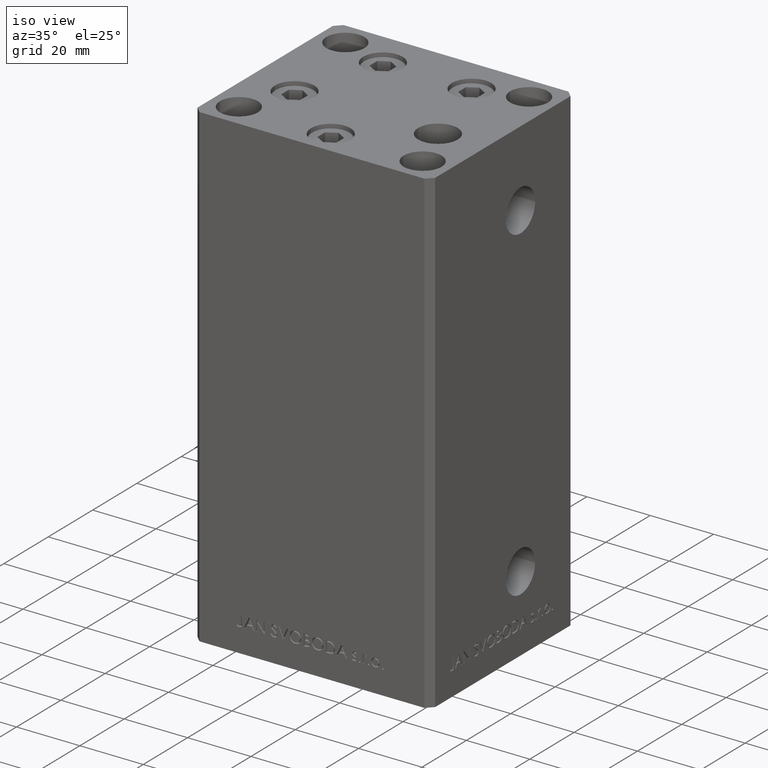
[diagram: clean part render]
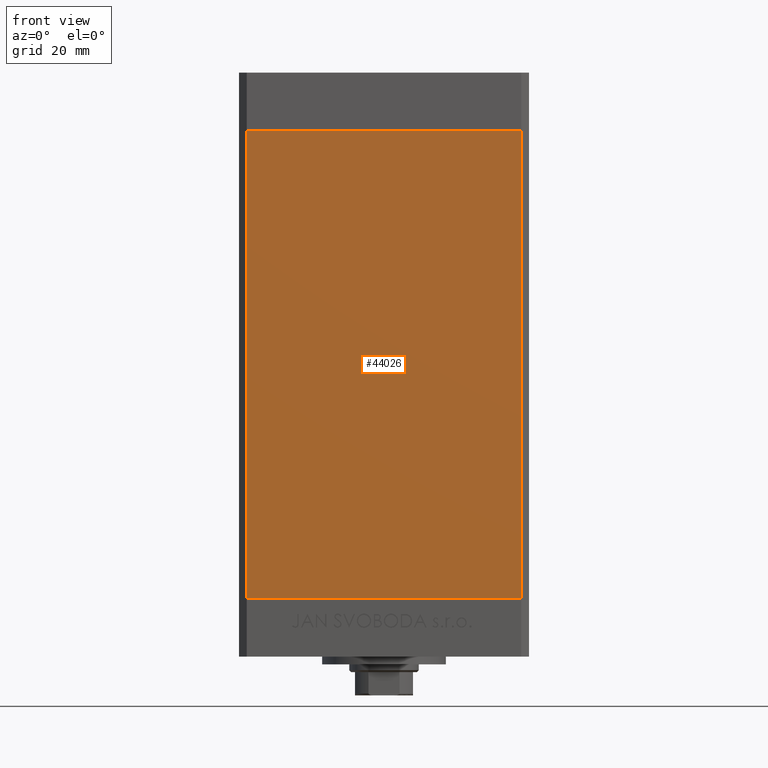
[diagram: tour spotlight — one face highlighted and labeled with its STEP entity id]
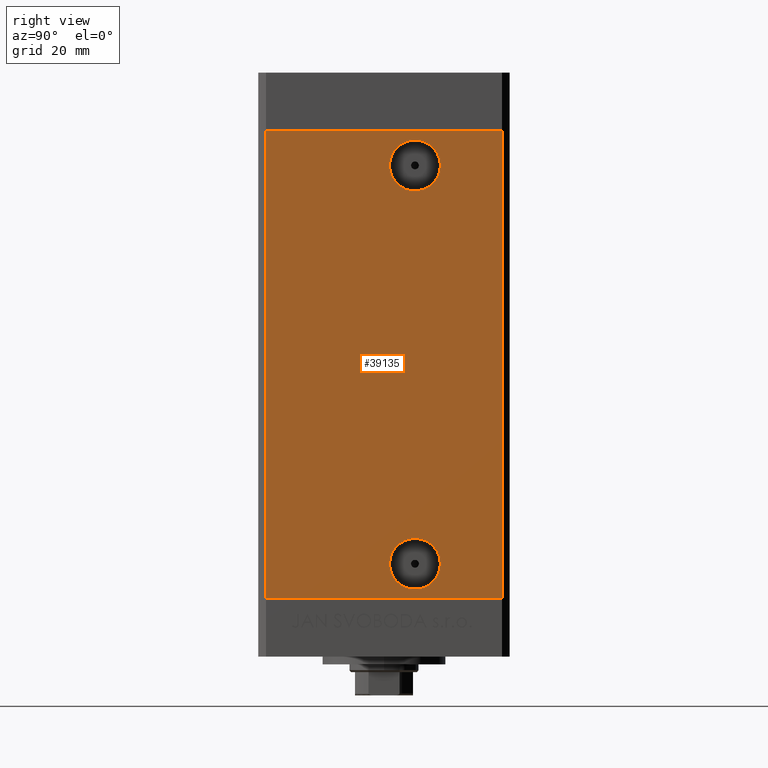
[diagram: tour spotlight — one face highlighted and labeled with its STEP entity id]
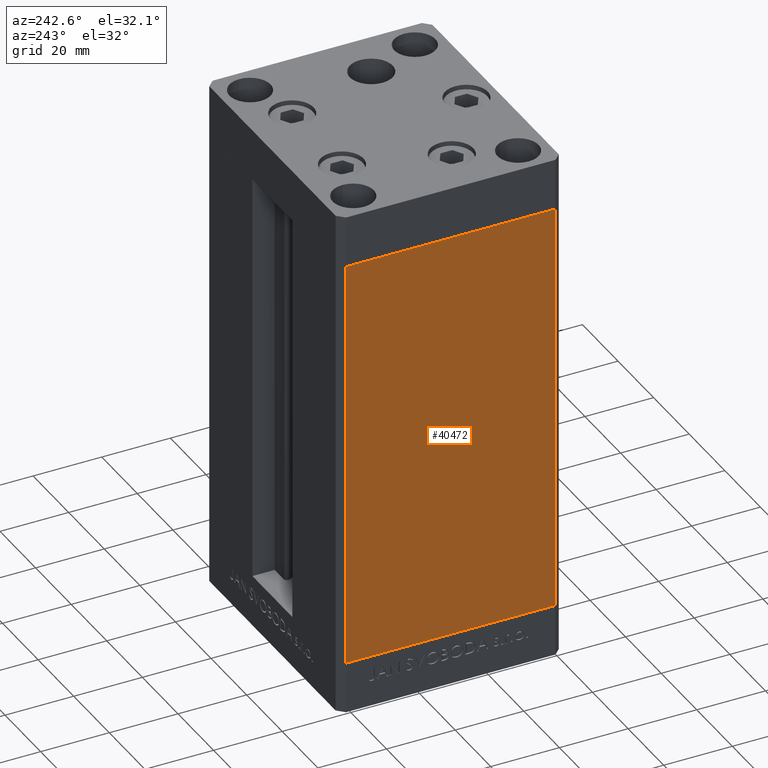
[diagram: tour spotlight — one face highlighted and labeled with its STEP entity id]
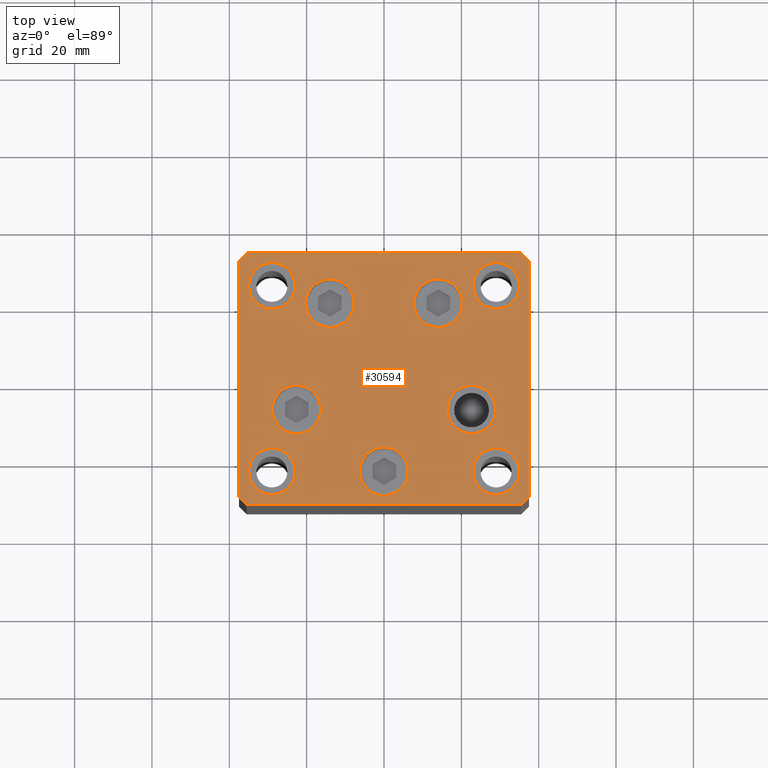
[diagram: tour spotlight — one face highlighted and labeled with its STEP entity id]
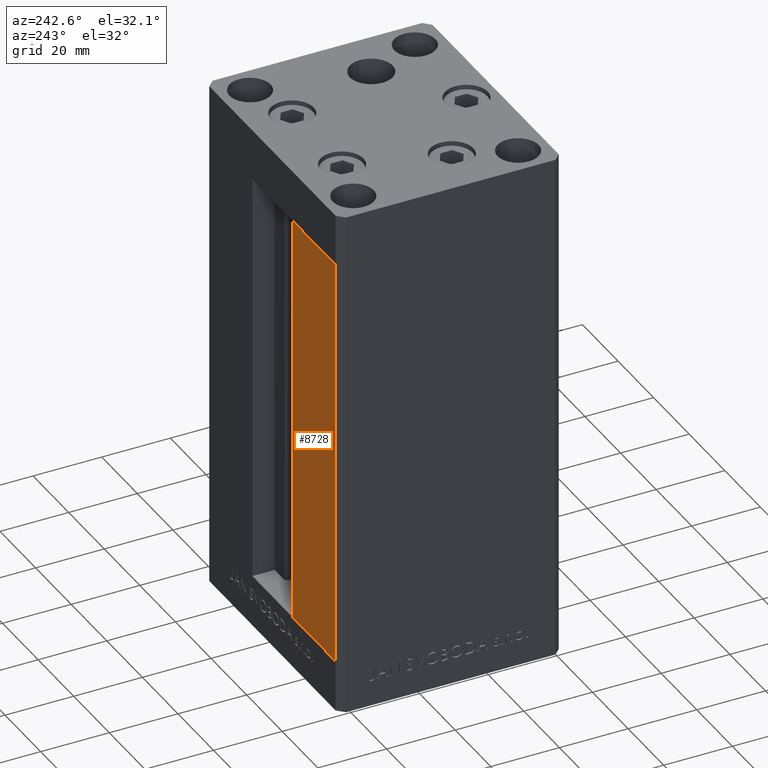
[diagram: tour spotlight — one face highlighted and labeled with its STEP entity id]
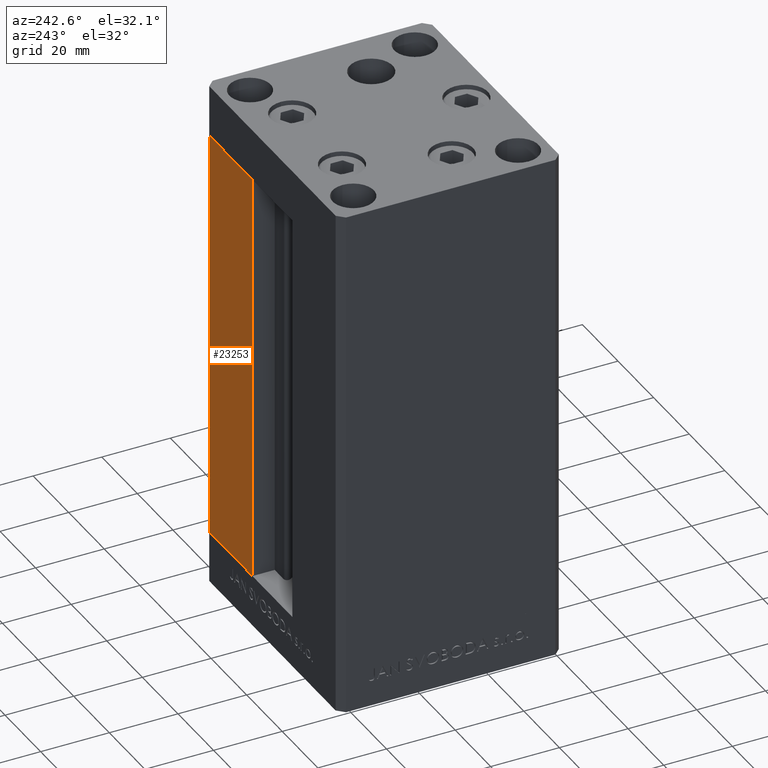
[diagram: tour spotlight — one face highlighted and labeled with its STEP entity id]
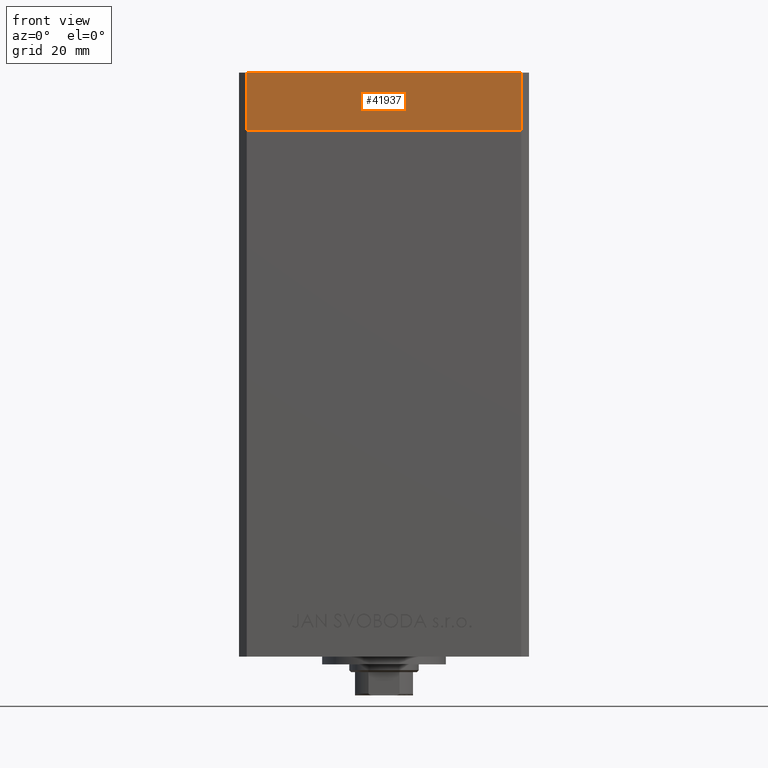
[diagram: tour spotlight — one face highlighted and labeled with its STEP entity id]
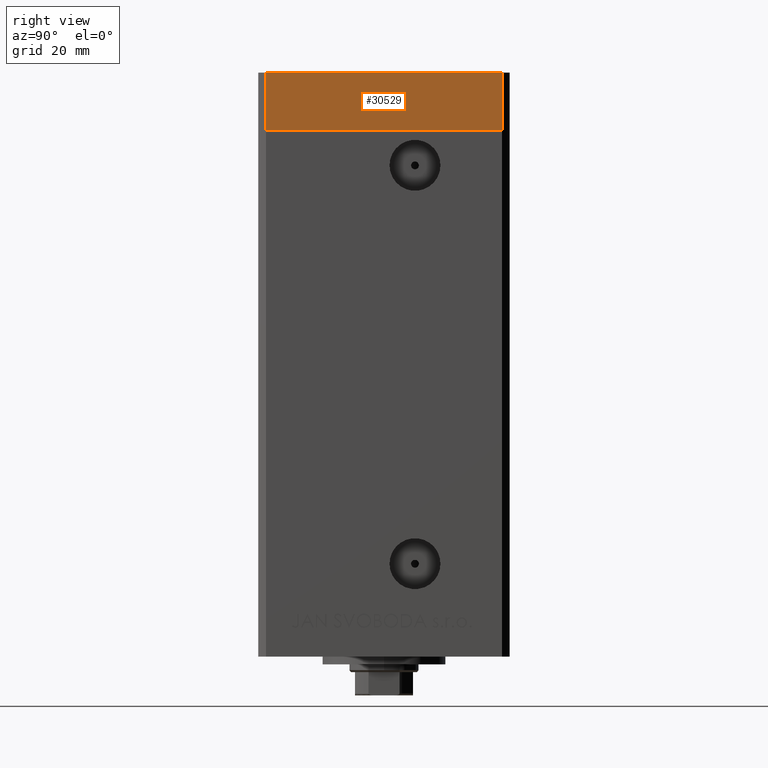
[diagram: tour spotlight — one face highlighted and labeled with its STEP entity id]
A machine part: a face-by-face anatomy tour. The part has 1169 B-rep faces; the first image is the clean iso view, then the 8 largest visible faces are spotlighted one at a time (largest first), each with its STEP entity span.

Face 1 — front view, entity #44026. In plain terms, the highlighted planar face has unit normal (0, 1, 0).
Definition (entity closure, byte-faithful):
#1613 = CARTESIAN_POINT ( 'NONE',  ( 35.49999999999999289, -32.50000000000000000, 121.0000000000000000 ) ) ;
#3318 = VECTOR ( 'NONE', #39410, 1000.000000000000000 ) ;
#5773 = LINE ( 'NONE', #39171, #3318 ) ;
#6945 = ORIENTED_EDGE ( 'NONE', *, *, #45944, .T. ) ;
#7043 = CARTESIAN_POINT ( 'NONE',  ( -35.49999999999999289, -32.50000000000000000, 121.0000000000000000 ) ) ;
#8787 = EDGE_LOOP ( 'NONE', ( #17415, #12719, #27974, #6945 ) ) ;
#10812 = VECTOR ( 'NONE', #47216, 1000.000000000000000 ) ;
#12642 = EDGE_CURVE ( 'NONE', #33855, #28897, #49188, .T. ) ;
#12719 = ORIENTED_EDGE ( 'NONE', *, *, #31544, .F. ) ;
#12919 = LINE ( 'NONE', #39557, #45379 ) ;
#15297 = CARTESIAN_POINT ( 'NONE',  ( -35.49999999999999289, -32.50000000000000000, 0.000000000000000000 ) ) ;
#16718 = DIRECTION ( 'NONE',  ( 0.000000000000000000, 1.000000000000000000, 0.000000000000000000 ) ) ;
#17415 = ORIENTED_EDGE ( 'NONE', *, *, #12642, .T. ) ;
#19011 = VECTOR ( 'NONE', #26747, 1000.000000000000000 ) ;
#19108 = EDGE_CURVE ( 'NONE', #40384, #43232, #5773, .T. ) ;
#24021 = CARTESIAN_POINT ( 'NONE',  ( 35.49999999999999289, -32.50000000000000000, 121.0000000000000000 ) ) ;
#25418 = DIRECTION ( 'NONE',  ( 0.000000000000000000, -0.000000000000000000, 1.000000000000000000 ) ) ;
#26747 = DIRECTION ( 'NONE',  ( 1.000000000000000000, 0.000000000000000000, 0.000000000000000000 ) ) ;
#27974 = ORIENTED_EDGE ( 'NONE', *, *, #19108, .F. ) ;
#28668 = CARTESIAN_POINT ( 'NONE',  ( -35.49999999999999289, -32.50000000000000000, 121.0000000000000000 ) ) ;
#28854 = CARTESIAN_POINT ( 'NONE',  ( -35.49999999999999289, -32.50000000000000000, 0.000000000000000000 ) ) ;
#28897 = VERTEX_POINT ( 'NONE', #46145 ) ;
#31544 = EDGE_CURVE ( 'NONE', #43232, #28897, #35749, .T. ) ;
#33855 = VERTEX_POINT ( 'NONE', #28854 ) ;
#35749 = LINE ( 'NONE', #1613, #10812 ) ;
#35829 = DIRECTION ( 'NONE',  ( -0.000000000000000000, -0.000000000000000000, -1.000000000000000000 ) ) ;
#36632 = PLANE ( 'NONE',  #47693 ) ;
#39171 = CARTESIAN_POINT ( 'NONE',  ( -35.49999999999999289, -32.50000000000000000, 121.0000000000000000 ) ) ;
#39410 = DIRECTION ( 'NONE',  ( 1.000000000000000000, 0.000000000000000000, 0.000000000000000000 ) ) ;
#39557 = CARTESIAN_POINT ( 'NONE',  ( -35.49999999999999289, -32.50000000000000000, 121.0000000000000000 ) ) ;
#40116 = FACE_OUTER_BOUND ( 'NONE', #8787, .T. ) ;
#40384 = VERTEX_POINT ( 'NONE', #7043 ) ;
#43232 = VERTEX_POINT ( 'NONE', #24021 ) ;
#44026 = ADVANCED_FACE ( 'NONE', ( #40116 ), #36632, .F. ) ;
#45379 = VECTOR ( 'NONE', #35829, 1000.000000000000000 ) ;
#45944 = EDGE_CURVE ( 'NONE', #40384, #33855, #12919, .T. ) ;
#46145 = CARTESIAN_POINT ( 'NONE',  ( 35.49999999999999289, -32.50000000000000000, 0.000000000000000000 ) ) ;
#47216 = DIRECTION ( 'NONE',  ( -0.000000000000000000, -0.000000000000000000, -1.000000000000000000 ) ) ;
#47693 = AXIS2_PLACEMENT_3D ( 'NONE', #28668, #16718, #25418 ) ;
#49188 = LINE ( 'NONE', #15297, #19011 ) ;

Face 2 — right view, entity #39135. In plain terms, the highlighted planar face has unit normal (1, -0, 0).
Definition (entity closure, byte-faithful):
#44 = FACE_OUTER_BOUND ( 'NONE', #3444, .T. ) ;
#312 = CIRCLE ( 'NONE', #32929, 6.580000000000006288 ) ;
#1404 = VECTOR ( 'NONE', #17225, 1000.000000000000000 ) ;
#1661 = CARTESIAN_POINT ( 'NONE',  ( 37.50000000000000000, 7.999999999999991118, 8.999999999999994671 ) ) ;
#1679 = ORIENTED_EDGE ( 'NONE', *, *, #9567, .F. ) ;
#2191 = AXIS2_PLACEMENT_3D ( 'NONE', #23453, #30202, #15488 ) ;
#2241 = EDGE_CURVE ( 'NONE', #33177, #34688, #48256, .T. ) ;
#2506 = CARTESIAN_POINT ( 'NONE',  ( 37.50000000000000000, 7.999999999999991118, 111.9999999999999858 ) ) ;
#3109 = VECTOR ( 'NONE', #6335, 1000.000000000000000 ) ;
#3163 = EDGE_LOOP ( 'NONE', ( #25339, #35621 ) ) ;
#3444 = EDGE_LOOP ( 'NONE', ( #28221, #20980, #26008, #15159 ) ) ;
#3562 = DIRECTION ( 'NONE',  ( 0.000000000000000000, 1.000000000000000000, 0.000000000000000000 ) ) ;
#3742 = CARTESIAN_POINT ( 'NONE',  ( 37.50000000000000711, 30.50000000000000000, 0.000000000000000000 ) ) ;
#3853 = CARTESIAN_POINT ( 'NONE',  ( 37.49999999999999289, -30.50000000000000000, 121.0000000000000000 ) ) ;
#4261 = ORIENTED_EDGE ( 'NONE', *, *, #2241, .F. ) ;
#5280 = CARTESIAN_POINT ( 'NONE',  ( 37.50000000000000711, 30.50000000000000000, 121.0000000000000000 ) ) ;
#5850 = CARTESIAN_POINT ( 'NONE',  ( 37.50000000000000711, 30.50000000000000000, 121.0000000000000000 ) ) ;
#6130 = DIRECTION ( 'NONE',  ( 1.000000000000000000, -2.275047181608927644E-16, 0.000000000000000000 ) ) ;
#6335 = DIRECTION ( 'NONE',  ( -2.275047181608927644E-16, -1.000000000000000000, 0.000000000000000000 ) ) ;
#6911 = CARTESIAN_POINT ( 'NONE',  ( 37.50000000000000000, 1.419999999999989049, 111.9999999999999858 ) ) ;
#7767 = FACE_BOUND ( 'NONE', #3163, .T. ) ;
#8412 = VERTEX_POINT ( 'NONE', #13799 ) ;
#8815 = EDGE_CURVE ( 'NONE', #24470, #19255, #9761, .T. ) ;
#9567 = EDGE_CURVE ( 'NONE', #34688, #33177, #31631, .T. ) ;
#9761 = LINE ( 'NONE', #5280, #1404 ) ;
#9838 = LINE ( 'NONE', #5850, #3109 ) ;
#11697 = CARTESIAN_POINT ( 'NONE',  ( 37.49999999999999289, -30.50000000000000000, 121.0000000000000000 ) ) ;
#13530 = EDGE_CURVE ( 'NONE', #24470, #29631, #9838, .T. ) ;
#13799 = CARTESIAN_POINT ( 'NONE',  ( 37.50000000000000000, 1.419999999999985496, 8.999999999999994671 ) ) ;
#14306 = EDGE_CURVE ( 'NONE', #19255, #45272, #23807, .T. ) ;
#15159 = ORIENTED_EDGE ( 'NONE', *, *, #27836, .T. ) ;
#15488 = DIRECTION ( 'NONE',  ( 2.275047181608927151E-16, 1.000000000000000000, 0.000000000000000000 ) ) ;
#16089 = DIRECTION ( 'NONE',  ( -2.275047181608927644E-16, -1.000000000000000000, 0.000000000000000000 ) ) ;
#17175 = VERTEX_POINT ( 'NONE', #27449 ) ;
#17225 = DIRECTION ( 'NONE',  ( -0.000000000000000000, -0.000000000000000000, -1.000000000000000000 ) ) ;
#17709 = DIRECTION ( 'NONE',  ( 0.000000000000000000, 1.000000000000000000, 0.000000000000000000 ) ) ;
#18627 = CARTESIAN_POINT ( 'NONE',  ( 37.49999999999999289, -30.50000000000000000, 0.000000000000000000 ) ) ;
#19236 = PLANE ( 'NONE',  #2191 ) ;
#19249 = CIRCLE ( 'NONE', #45513, 6.580000000000006288 ) ;
#19255 = VERTEX_POINT ( 'NONE', #3742 ) ;
#20844 = DIRECTION ( 'NONE',  ( 0.000000000000000000, 1.000000000000000000, 0.000000000000000000 ) ) ;
#20980 = ORIENTED_EDGE ( 'NONE', *, *, #8815, .F. ) ;
#20997 = EDGE_LOOP ( 'NONE', ( #4261, #1679 ) ) ;
#23453 = CARTESIAN_POINT ( 'NONE',  ( 37.50000000000000711, 30.50000000000000000, 121.0000000000000000 ) ) ;
#23586 = EDGE_CURVE ( 'NONE', #17175, #8412, #19249, .T. ) ;
#23807 = LINE ( 'NONE', #42994, #30179 ) ;
#24470 = VERTEX_POINT ( 'NONE', #36767 ) ;
#25032 = VECTOR ( 'NONE', #27135, 1000.000000000000000 ) ;
#25164 = AXIS2_PLACEMENT_3D ( 'NONE', #2506, #39640, #17709 ) ;
#25339 = ORIENTED_EDGE ( 'NONE', *, *, #23586, .F. ) ;
#25602 = DIRECTION ( 'NONE',  ( 1.000000000000000000, -2.275047181608927644E-16, 0.000000000000000000 ) ) ;
#26008 = ORIENTED_EDGE ( 'NONE', *, *, #13530, .T. ) ;
#27135 = DIRECTION ( 'NONE',  ( -0.000000000000000000, -0.000000000000000000, -1.000000000000000000 ) ) ;
#27256 = EDGE_CURVE ( 'NONE', #8412, #17175, #312, .T. ) ;
#27449 = CARTESIAN_POINT ( 'NONE',  ( 37.50000000000000000, 14.57999999999999829, 8.999999999999994671 ) ) ;
#27836 = EDGE_CURVE ( 'NONE', #29631, #45272, #42086, .T. ) ;
#28221 = ORIENTED_EDGE ( 'NONE', *, *, #14306, .F. ) ;
#29631 = VERTEX_POINT ( 'NONE', #3853 ) ;
#30179 = VECTOR ( 'NONE', #16089, 1000.000000000000000 ) ;
#30202 = DIRECTION ( 'NONE',  ( 1.000000000000000000, -2.275047181608927151E-16, 0.000000000000000000 ) ) ;
#30936 = FACE_BOUND ( 'NONE', #20997, .T. ) ;
#31631 = CIRCLE ( 'NONE', #45146, 6.580000000000002736 ) ;
#32823 = DIRECTION ( 'NONE',  ( 0.000000000000000000, 1.000000000000000000, 0.000000000000000000 ) ) ;
#32929 = AXIS2_PLACEMENT_3D ( 'NONE', #47535, #25602, #32823 ) ;
#33177 = VERTEX_POINT ( 'NONE', #40166 ) ;
#34688 = VERTEX_POINT ( 'NONE', #6911 ) ;
#35621 = ORIENTED_EDGE ( 'NONE', *, *, #27256, .F. ) ;
#36767 = CARTESIAN_POINT ( 'NONE',  ( 37.50000000000000711, 30.50000000000000000, 121.0000000000000000 ) ) ;
#37937 = DIRECTION ( 'NONE',  ( 1.000000000000000000, -2.275047181608927644E-16, 0.000000000000000000 ) ) ;
#39135 = ADVANCED_FACE ( 'NONE', ( #7767, #30936, #44 ), #19236, .T. ) ;
#39640 = DIRECTION ( 'NONE',  ( 1.000000000000000000, -2.275047181608927644E-16, 0.000000000000000000 ) ) ;
#40166 = CARTESIAN_POINT ( 'NONE',  ( 37.50000000000000000, 14.57999999999999474, 111.9999999999999858 ) ) ;
#41186 = CARTESIAN_POINT ( 'NONE',  ( 37.50000000000000000, 7.999999999999991118, 111.9999999999999858 ) ) ;
#42086 = LINE ( 'NONE', #11697, #25032 ) ;
#42994 = CARTESIAN_POINT ( 'NONE',  ( 37.50000000000000711, 30.50000000000000000, 0.000000000000000000 ) ) ;
#45146 = AXIS2_PLACEMENT_3D ( 'NONE', #41186, #37937, #3562 ) ;
#45272 = VERTEX_POINT ( 'NONE', #18627 ) ;
#45513 = AXIS2_PLACEMENT_3D ( 'NONE', #1661, #6130, #20844 ) ;
#47535 = CARTESIAN_POINT ( 'NONE',  ( 37.50000000000000000, 7.999999999999991118, 8.999999999999994671 ) ) ;
#48256 = CIRCLE ( 'NONE', #25164, 6.580000000000002736 ) ;

Face 3 — auxiliary view, entity #40472. In plain terms, the highlighted planar face has unit normal (1, 0, 0).
Definition (entity closure, byte-faithful):
#1450 = AXIS2_PLACEMENT_3D ( 'NONE', #46334, #8455, #23647 ) ;
#2058 = VECTOR ( 'NONE', #30958, 1000.000000000000000 ) ;
#5060 = EDGE_LOOP ( 'NONE', ( #43598, #26855, #34605, #28074 ) ) ;
#7545 = VERTEX_POINT ( 'NONE', #19538 ) ;
#8073 = DIRECTION ( 'NONE',  ( 2.275047181608927644E-16, -1.000000000000000000, 0.000000000000000000 ) ) ;
#8455 = DIRECTION ( 'NONE',  ( 1.000000000000000000, 2.275047181608927151E-16, -0.000000000000000000 ) ) ;
#9109 = VECTOR ( 'NONE', #8073, 1000.000000000000000 ) ;
#11817 = LINE ( 'NONE', #13473, #9109 ) ;
#13473 = CARTESIAN_POINT ( 'NONE',  ( -37.50000000000000711, 30.50000000000000000, 0.000000000000000000 ) ) ;
#15931 = FACE_OUTER_BOUND ( 'NONE', #5060, .T. ) ;
#16330 = CARTESIAN_POINT ( 'NONE',  ( -37.50000000000000711, 30.50000000000000000, 121.0000000000000000 ) ) ;
#16776 = VECTOR ( 'NONE', #21443, 1000.000000000000000 ) ;
#18687 = CARTESIAN_POINT ( 'NONE',  ( -37.50000000000000711, 30.50000000000000000, 121.0000000000000000 ) ) ;
#18764 = VERTEX_POINT ( 'NONE', #43457 ) ;
#19538 = CARTESIAN_POINT ( 'NONE',  ( -37.50000000000000711, 30.50000000000000000, 0.000000000000000000 ) ) ;
#20669 = VERTEX_POINT ( 'NONE', #16330 ) ;
#21443 = DIRECTION ( 'NONE',  ( 2.275047181608927644E-16, -1.000000000000000000, 0.000000000000000000 ) ) ;
#22994 = CARTESIAN_POINT ( 'NONE',  ( -37.49999999999999289, -30.50000000000000000, 121.0000000000000000 ) ) ;
#23647 = DIRECTION ( 'NONE',  ( -2.275047181608927151E-16, 1.000000000000000000, 0.000000000000000000 ) ) ;
#25677 = CARTESIAN_POINT ( 'NONE',  ( -37.50000000000000711, 30.50000000000000000, 121.0000000000000000 ) ) ;
#25679 = LINE ( 'NONE', #18687, #26985 ) ;
#26855 = ORIENTED_EDGE ( 'NONE', *, *, #31731, .F. ) ;
#26985 = VECTOR ( 'NONE', #40864, 1000.000000000000000 ) ;
#27670 = EDGE_CURVE ( 'NONE', #7545, #31989, #11817, .T. ) ;
#28074 = ORIENTED_EDGE ( 'NONE', *, *, #42992, .T. ) ;
#30958 = DIRECTION ( 'NONE',  ( -0.000000000000000000, -0.000000000000000000, -1.000000000000000000 ) ) ;
#31124 = PLANE ( 'NONE',  #1450 ) ;
#31731 = EDGE_CURVE ( 'NONE', #18764, #31989, #42177, .T. ) ;
#31989 = VERTEX_POINT ( 'NONE', #46354 ) ;
#34605 = ORIENTED_EDGE ( 'NONE', *, *, #47810, .F. ) ;
#40472 = ADVANCED_FACE ( 'NONE', ( #15931 ), #31124, .F. ) ;
#40864 = DIRECTION ( 'NONE',  ( -0.000000000000000000, -0.000000000000000000, -1.000000000000000000 ) ) ;
#42177 = LINE ( 'NONE', #22994, #2058 ) ;
#42992 = EDGE_CURVE ( 'NONE', #20669, #7545, #25679, .T. ) ;
#43457 = CARTESIAN_POINT ( 'NONE',  ( -37.49999999999999289, -30.50000000000000000, 121.0000000000000000 ) ) ;
#43598 = ORIENTED_EDGE ( 'NONE', *, *, #27670, .T. ) ;
#44610 = LINE ( 'NONE', #25677, #16776 ) ;
#46334 = CARTESIAN_POINT ( 'NONE',  ( -37.50000000000000711, 30.50000000000000000, 121.0000000000000000 ) ) ;
#46354 = CARTESIAN_POINT ( 'NONE',  ( -37.49999999999999289, -30.50000000000000000, 0.000000000000000000 ) ) ;
#47810 = EDGE_CURVE ( 'NONE', #20669, #18764, #44610, .T. ) ;

Face 4 — top view, entity #30594. In plain terms, the highlighted planar face has unit normal (0, 0, 1).
Definition (entity closure, byte-faithful):
#65 = FACE_BOUND ( 'NONE', #6800, .T. ) ;
#157 = EDGE_CURVE ( 'NONE', #46944, #45923, #15582, .T. ) ;
#922 = ORIENTED_EDGE ( 'NONE', *, *, #5379, .T. ) ;
#1235 = CARTESIAN_POINT ( 'NONE',  ( 16.37741699796951877, -8.000000000000000000, 0.000000000000000000 ) ) ;
#1424 = ORIENTED_EDGE ( 'NONE', *, *, #46338, .F. ) ;
#1463 = CARTESIAN_POINT ( 'NONE',  ( 35.50000000000000711, -32.50000000000000711, 0.000000000000000000 ) ) ;
#1629 = EDGE_CURVE ( 'NONE', #18355, #46944, #23434, .T. ) ;
#1674 = EDGE_CURVE ( 'NONE', #10011, #41862, #15560, .T. ) ;
#1989 = AXIS2_PLACEMENT_3D ( 'NONE', #44231, #3125, #10109 ) ;
#2024 = CIRCLE ( 'NONE', #4399, 6.250000000000000000 ) ;
#2340 = VERTEX_POINT ( 'NONE', #6494 ) ;
#2531 = DIRECTION ( 'NONE',  ( 0.000000000000000000, 0.000000000000000000, 1.000000000000000000 ) ) ;
#3125 = DIRECTION ( 'NONE',  ( 0.000000000000000000, -0.000000000000000000, -1.000000000000000000 ) ) ;
#3468 = VERTEX_POINT ( 'NONE', #11226 ) ;
#3556 = CARTESIAN_POINT ( 'NONE',  ( 0.000000000000000000, 0.000000000000000000, 0.000000000000000000 ) ) ;
#3767 = DIRECTION ( 'NONE',  ( 1.000000000000000000, 0.000000000000000000, 0.000000000000000000 ) ) ;
#3803 = EDGE_LOOP ( 'NONE', ( #47754, #1424 ) ) ;
#4149 = CARTESIAN_POINT ( 'NONE',  ( 28.87741699796952233, -8.000000000000000000, 0.000000000000000000 ) ) ;
#4399 = AXIS2_PLACEMENT_3D ( 'NONE', #24456, #35182, #42651 ) ;
#4784 = CARTESIAN_POINT ( 'NONE',  ( -35.50000000000002842, 32.49999999999999289, 0.000000000000000000 ) ) ;
#4790 = EDGE_LOOP ( 'NONE', ( #15541, #32063, #15561, #35756, #922, #48387, #9284, #10249 ) ) ;
#4960 = LINE ( 'NONE', #1463, #42747 ) ;
#4985 = DIRECTION ( 'NONE',  ( -0.7071067811865482389, 0.7071067811865469066, 0.000000000000000000 ) ) ;
#5379 = EDGE_CURVE ( 'NONE', #20539, #41915, #47570, .T. ) ;
#5779 = DIRECTION ( 'NONE',  ( 1.000000000000000000, 0.000000000000000000, 0.000000000000000000 ) ) ;
#5941 = AXIS2_PLACEMENT_3D ( 'NONE', #27567, #9368, #34787 ) ;
#6387 = EDGE_LOOP ( 'NONE', ( #12537, #42455 ) ) ;
#6494 = CARTESIAN_POINT ( 'NONE',  ( -23.00000000000001421, -23.99999999999999289, 0.000000000000000000 ) ) ;
#6624 = DIRECTION ( 'NONE',  ( 1.000000000000000000, 0.000000000000000000, 0.000000000000000000 ) ) ;
#6752 = CIRCLE ( 'NONE', #18710, 6.250000000000001776 ) ;
#6800 = EDGE_LOOP ( 'NONE', ( #42998, #22218 ) ) ;
#6968 = DIRECTION ( 'NONE',  ( 0.7071067811865474617, -0.7071067811865474617, 0.000000000000000000 ) ) ;
#7667 = CIRCLE ( 'NONE', #47477, 6.000000000000005329 ) ;
#7814 = DIRECTION ( 'NONE',  ( 1.000000000000000000, 9.773090005503140331E-17, 0.000000000000000000 ) ) ;
#8003 = CARTESIAN_POINT ( 'NONE',  ( -22.62741699796951877, -8.000000000000005329, 0.000000000000000000 ) ) ;
#8015 = DIRECTION ( 'NONE',  ( 1.000000000000000000, 0.000000000000000000, 0.000000000000000000 ) ) ;
#8139 = LINE ( 'NONE', #30564, #37768 ) ;
#8415 = AXIS2_PLACEMENT_3D ( 'NONE', #36866, #40601, #32629 ) ;
#8669 = CIRCLE ( 'NONE', #34911, 5.999999999999998224 ) ;
#8945 = DIRECTION ( 'NONE',  ( 0.7071067811865487940, 0.7071067811865463515, 0.000000000000000000 ) ) ;
#9025 = ORIENTED_EDGE ( 'NONE', *, *, #1674, .F. ) ;
#9165 = VECTOR ( 'NONE', #46234, 1000.000000000000000 ) ;
#9174 = CARTESIAN_POINT ( 'NONE',  ( -37.50000000000001421, 30.49999999999998579, 0.000000000000000000 ) ) ;
#9283 = CIRCLE ( 'NONE', #24394, 6.000000000000005329 ) ;
#9284 = ORIENTED_EDGE ( 'NONE', *, *, #1629, .T. ) ;
#9368 = DIRECTION ( 'NONE',  ( 0.000000000000000000, -0.000000000000000000, -1.000000000000000000 ) ) ;
#9726 = EDGE_CURVE ( 'NONE', #31887, #2340, #8669, .T. ) ;
#9976 = DIRECTION ( 'NONE',  ( 0.000000000000000000, 0.000000000000000000, 1.000000000000000000 ) ) ;
#10011 = VERTEX_POINT ( 'NONE', #46352 ) ;
#10109 = DIRECTION ( 'NONE',  ( 1.000000000000000000, 0.000000000000000000, 0.000000000000000000 ) ) ;
#10135 = DIRECTION ( 'NONE',  ( 0.000000000000000000, -0.000000000000000000, -1.000000000000000000 ) ) ;
#10193 = VERTEX_POINT ( 'NONE', #33359 ) ;
#10249 = ORIENTED_EDGE ( 'NONE', *, *, #157, .T. ) ;
#10433 = CARTESIAN_POINT ( 'NONE',  ( -29.00000000000001066, -23.99999999999999289, 0.000000000000000000 ) ) ;
#10664 = CARTESIAN_POINT ( 'NONE',  ( 6.250000000000002665, -24.00000000000000000, 0.000000000000000000 ) ) ;
#10916 = DIRECTION ( 'NONE',  ( 0.000000000000000000, 0.000000000000000000, 1.000000000000000000 ) ) ;
#11226 = CARTESIAN_POINT ( 'NONE',  ( 23.00000000000001066, -23.99999999999999289, 0.000000000000000000 ) ) ;
#11492 = EDGE_LOOP ( 'NONE', ( #44763, #45987 ) ) ;
#11554 = CARTESIAN_POINT ( 'NONE',  ( -35.49999999999998579, -32.50000000000001421, 0.000000000000000000 ) ) ;
#11614 = CARTESIAN_POINT ( 'NONE',  ( 37.49999999999992184, 30.50000000000001066, 0.000000000000000000 ) ) ;
#11759 = CARTESIAN_POINT ( 'NONE',  ( 2.939152317953647500E-15, -24.00000000000000000, 0.000000000000000000 ) ) ;
#12088 = VERTEX_POINT ( 'NONE', #24358 ) ;
#12537 = ORIENTED_EDGE ( 'NONE', *, *, #48989, .T. ) ;
#13441 = CARTESIAN_POINT ( 'NONE',  ( 37.49999999999992184, 30.50000000000001066, 0.000000000000000000 ) ) ;
#13571 = VERTEX_POINT ( 'NONE', #17304 ) ;
#13979 = AXIS2_PLACEMENT_3D ( 'NONE', #10433, #10916, #18635 ) ;
#14121 = AXIS2_PLACEMENT_3D ( 'NONE', #21622, #33806, #45762 ) ;
#14505 = EDGE_CURVE ( 'NONE', #44211, #21849, #45928, .T. ) ;
#14548 = VERTEX_POINT ( 'NONE', #42193 ) ;
#14768 = EDGE_CURVE ( 'NONE', #34969, #19191, #16703, .T. ) ;
#14784 = VECTOR ( 'NONE', #34899, 1000.000000000000000 ) ;
#15025 = DIRECTION ( 'NONE',  ( 1.000000000000000000, 0.000000000000000000, 0.000000000000000000 ) ) ;
#15541 = ORIENTED_EDGE ( 'NONE', *, *, #38228, .T. ) ;
#15560 = CIRCLE ( 'NONE', #8415, 6.000000000000005329 ) ;
#15561 = ORIENTED_EDGE ( 'NONE', *, *, #34624, .T. ) ;
#15582 = LINE ( 'NONE', #19569, #9165 ) ;
#15584 = VERTEX_POINT ( 'NONE', #46677 ) ;
#15750 = FACE_BOUND ( 'NONE', #6387, .T. ) ;
#15930 = DIRECTION ( 'NONE',  ( 1.000000000000000000, 0.000000000000000000, 0.000000000000000000 ) ) ;
#16428 = DIRECTION ( 'NONE',  ( 1.000000000000000000, 0.000000000000000000, 0.000000000000000000 ) ) ;
#16677 = DIRECTION ( 'NONE',  ( 0.000000000000000000, -0.000000000000000000, -1.000000000000000000 ) ) ;
#16703 = CIRCLE ( 'NONE', #46933, 6.250000000000001776 ) ;
#17304 = CARTESIAN_POINT ( 'NONE',  ( -6.249999999999997335, -24.00000000000000000, 0.000000000000000000 ) ) ;
#17607 = VERTEX_POINT ( 'NONE', #24386 ) ;
#17968 = VERTEX_POINT ( 'NONE', #36778 ) ;
#18245 = CARTESIAN_POINT ( 'NONE',  ( 35.00000000000001421, 24.00000000000000711, 0.000000000000000000 ) ) ;
#18303 = CIRCLE ( 'NONE', #27883, 6.000000000000005329 ) ;
#18355 = VERTEX_POINT ( 'NONE', #4784 ) ;
#18542 = AXIS2_PLACEMENT_3D ( 'NONE', #34865, #16677, #15930 ) ;
#18552 = ORIENTED_EDGE ( 'NONE', *, *, #44129, .F. ) ;
#18635 = DIRECTION ( 'NONE',  ( 1.000000000000000000, 0.000000000000000000, 0.000000000000000000 ) ) ;
#18710 = AXIS2_PLACEMENT_3D ( 'NONE', #21074, #28812, #6624 ) ;
#18865 = DIRECTION ( 'NONE',  ( -1.000000000000000000, -1.954618001100629052E-16, 0.000000000000000000 ) ) ;
#18986 = CARTESIAN_POINT ( 'NONE',  ( 35.50000000000000711, -32.50000000000000711, 0.000000000000000000 ) ) ;
#19041 = DIRECTION ( 'NONE',  ( 0.000000000000000000, 0.000000000000000000, 1.000000000000000000 ) ) ;
#19191 = VERTEX_POINT ( 'NONE', #32669 ) ;
#19569 = CARTESIAN_POINT ( 'NONE',  ( -37.50000000000001421, 30.49999999999998579, 0.000000000000000000 ) ) ;
#19736 = FACE_BOUND ( 'NONE', #27276, .T. ) ;
#20404 = DIRECTION ( 'NONE',  ( 1.000000000000000000, 0.000000000000000000, 0.000000000000000000 ) ) ;
#20539 = VERTEX_POINT ( 'NONE', #11614 ) ;
#21074 = CARTESIAN_POINT ( 'NONE',  ( 22.62741699796951877, -8.000000000000000000, 0.000000000000000000 ) ) ;
#21098 = DIRECTION ( 'NONE',  ( -1.478780668045802821E-15, 1.000000000000000000, 0.000000000000000000 ) ) ;
#21344 = ORIENTED_EDGE ( 'NONE', *, *, #9726, .F. ) ;
#21622 = CARTESIAN_POINT ( 'NONE',  ( -13.99106857963322703, 19.49999999999999645, 0.000000000000000000 ) ) ;
#21673 = AXIS2_PLACEMENT_3D ( 'NONE', #11759, #26951, #8015 ) ;
#21849 = VERTEX_POINT ( 'NONE', #18986 ) ;
#21901 = AXIS2_PLACEMENT_3D ( 'NONE', #3556, #38182, #15025 ) ;
#21918 = EDGE_CURVE ( 'NONE', #13571, #24269, #24872, .T. ) ;
#22137 = EDGE_LOOP ( 'NONE', ( #34940, #33831 ) ) ;
#22218 = ORIENTED_EDGE ( 'NONE', *, *, #38738, .T. ) ;
#22259 = EDGE_CURVE ( 'NONE', #45743, #17607, #28080, .T. ) ;
#22384 = EDGE_LOOP ( 'NONE', ( #44140, #9025 ) ) ;
#22521 = AXIS2_PLACEMENT_3D ( 'NONE', #43079, #42829, #20404 ) ;
#22986 = PLANE ( 'NONE',  #21901 ) ;
#23199 = EDGE_CURVE ( 'NONE', #32547, #12088, #45580, .T. ) ;
#23228 = FACE_BOUND ( 'NONE', #22137, .T. ) ;
#23434 = LINE ( 'NONE', #23933, #14784 ) ;
#23866 = EDGE_LOOP ( 'NONE', ( #18552, #26478 ) ) ;
#23933 = CARTESIAN_POINT ( 'NONE',  ( -35.50000000000002842, 32.49999999999999289, 0.000000000000000000 ) ) ;
#24269 = VERTEX_POINT ( 'NONE', #10664 ) ;
#24358 = CARTESIAN_POINT ( 'NONE',  ( -7.741068579633227031, 19.49999999999999645, 0.000000000000000000 ) ) ;
#24386 = CARTESIAN_POINT ( 'NONE',  ( -23.00000000000001421, 24.00000000000000711, 0.000000000000000000 ) ) ;
#24394 = AXIS2_PLACEMENT_3D ( 'NONE', #42321, #49069, #28356 ) ;
#24456 = CARTESIAN_POINT ( 'NONE',  ( 2.939152317953647500E-15, -24.00000000000000000, 0.000000000000000000 ) ) ;
#24646 = CARTESIAN_POINT ( 'NONE',  ( 29.00000000000001066, -23.99999999999999289, 0.000000000000000000 ) ) ;
#24872 = CIRCLE ( 'NONE', #21673, 6.250000000000000000 ) ;
#25908 = CARTESIAN_POINT ( 'NONE',  ( -35.49999999999998579, -32.50000000000001421, 0.000000000000000000 ) ) ;
#26270 = DIRECTION ( 'NONE',  ( 1.000000000000000000, 0.000000000000000000, 0.000000000000000000 ) ) ;
#26478 = ORIENTED_EDGE ( 'NONE', *, *, #22259, .F. ) ;
#26951 = DIRECTION ( 'NONE',  ( 0.000000000000000000, -0.000000000000000000, -1.000000000000000000 ) ) ;
#27276 = EDGE_LOOP ( 'NONE', ( #37184, #21344 ) ) ;
#27567 = CARTESIAN_POINT ( 'NONE',  ( 13.99106857963322348, 19.50000000000000000, 0.000000000000000000 ) ) ;
#27883 = AXIS2_PLACEMENT_3D ( 'NONE', #45454, #19041, #26270 ) ;
#28080 = CIRCLE ( 'NONE', #22521, 5.999999999999998224 ) ;
#28163 = EDGE_CURVE ( 'NONE', #41915, #18355, #8139, .T. ) ;
#28280 = CIRCLE ( 'NONE', #13979, 5.999999999999998224 ) ;
#28350 = DIRECTION ( 'NONE',  ( 0.000000000000000000, -0.000000000000000000, -1.000000000000000000 ) ) ;
#28356 = DIRECTION ( 'NONE',  ( 1.000000000000000000, 0.000000000000000000, 0.000000000000000000 ) ) ;
#28400 = EDGE_CURVE ( 'NONE', #17968, #14548, #40145, .T. ) ;
#28812 = DIRECTION ( 'NONE',  ( 0.000000000000000000, -0.000000000000000000, -1.000000000000000000 ) ) ;
#29156 = CARTESIAN_POINT ( 'NONE',  ( -29.00000000000001066, 24.00000000000000711, 0.000000000000000000 ) ) ;
#29236 = EDGE_CURVE ( 'NONE', #47025, #31074, #6752, .T. ) ;
#29553 = EDGE_CURVE ( 'NONE', #31074, #47025, #42562, .T. ) ;
#30046 = EDGE_CURVE ( 'NONE', #2340, #31887, #28280, .T. ) ;
#30564 = CARTESIAN_POINT ( 'NONE',  ( 35.49999999999992184, 32.50000000000000711, 0.000000000000000000 ) ) ;
#30594 = ADVANCED_FACE ( 'NONE', ( #65, #30701, #23228, #45662, #15750, #30950, #19736, #34197, #49162, #34445 ), #22986, .T. ) ;
#30701 = FACE_BOUND ( 'NONE', #39185, .T. ) ;
#30797 = EDGE_CURVE ( 'NONE', #24269, #13571, #2024, .T. ) ;
#30950 = FACE_BOUND ( 'NONE', #3803, .T. ) ;
#31074 = VERTEX_POINT ( 'NONE', #1235 ) ;
#31096 = VECTOR ( 'NONE', #21098, 1000.000000000000000 ) ;
#31534 = AXIS2_PLACEMENT_3D ( 'NONE', #36306, #28350, #32569 ) ;
#31887 = VERTEX_POINT ( 'NONE', #40891 ) ;
#32063 = ORIENTED_EDGE ( 'NONE', *, *, #14505, .T. ) ;
#32547 = VERTEX_POINT ( 'NONE', #36867 ) ;
#32569 = DIRECTION ( 'NONE',  ( 1.000000000000000000, 0.000000000000000000, 0.000000000000000000 ) ) ;
#32629 = DIRECTION ( 'NONE',  ( 1.000000000000000000, 0.000000000000000000, 0.000000000000000000 ) ) ;
#32669 = CARTESIAN_POINT ( 'NONE',  ( -28.87741699796952233, -8.000000000000005329, 0.000000000000000000 ) ) ;
#32804 = LINE ( 'NONE', #48011, #31096 ) ;
#32887 = LINE ( 'NONE', #43859, #43527 ) ;
#32970 = EDGE_CURVE ( 'NONE', #14548, #17968, #45843, .T. ) ;
#33359 = CARTESIAN_POINT ( 'NONE',  ( 35.00000000000001421, -23.99999999999999289, 0.000000000000000000 ) ) ;
#33572 = CARTESIAN_POINT ( 'NONE',  ( -16.37741699796951877, -8.000000000000005329, 0.000000000000000000 ) ) ;
#33732 = EDGE_CURVE ( 'NONE', #41862, #10011, #9283, .T. ) ;
#33806 = DIRECTION ( 'NONE',  ( 0.000000000000000000, -0.000000000000000000, -1.000000000000000000 ) ) ;
#33831 = ORIENTED_EDGE ( 'NONE', *, *, #29236, .T. ) ;
#34197 = FACE_BOUND ( 'NONE', #23866, .T. ) ;
#34445 = FACE_OUTER_BOUND ( 'NONE', #4790, .T. ) ;
#34624 = EDGE_CURVE ( 'NONE', #21849, #15584, #4960, .T. ) ;
#34787 = DIRECTION ( 'NONE',  ( 1.000000000000000000, 0.000000000000000000, 0.000000000000000000 ) ) ;
#34865 = CARTESIAN_POINT ( 'NONE',  ( -13.99106857963322703, 19.49999999999999645, 0.000000000000000000 ) ) ;
#34899 = DIRECTION ( 'NONE',  ( -0.7071067811865426878, -0.7071067811865524577, 0.000000000000000000 ) ) ;
#34911 = AXIS2_PLACEMENT_3D ( 'NONE', #48127, #2531, #5779 ) ;
#34940 = ORIENTED_EDGE ( 'NONE', *, *, #29553, .T. ) ;
#34969 = VERTEX_POINT ( 'NONE', #33572 ) ;
#35182 = DIRECTION ( 'NONE',  ( 0.000000000000000000, -0.000000000000000000, -1.000000000000000000 ) ) ;
#35756 = ORIENTED_EDGE ( 'NONE', *, *, #48890, .T. ) ;
#36306 = CARTESIAN_POINT ( 'NONE',  ( 13.99106857963322348, 19.50000000000000000, 0.000000000000000000 ) ) ;
#36345 = DIRECTION ( 'NONE',  ( 0.000000000000000000, 0.000000000000000000, 1.000000000000000000 ) ) ;
#36691 = CARTESIAN_POINT ( 'NONE',  ( 35.49999999999992184, 32.50000000000000711, 0.000000000000000000 ) ) ;
#36778 = CARTESIAN_POINT ( 'NONE',  ( 20.24106857963322526, 19.50000000000000000, 0.000000000000000000 ) ) ;
#36866 = CARTESIAN_POINT ( 'NONE',  ( 29.00000000000001066, 24.00000000000000711, 0.000000000000000000 ) ) ;
#36867 = CARTESIAN_POINT ( 'NONE',  ( -20.24106857963322881, 19.49999999999999645, 0.000000000000000000 ) ) ;
#36895 = EDGE_CURVE ( 'NONE', #10193, #3468, #7667, .T. ) ;
#37184 = ORIENTED_EDGE ( 'NONE', *, *, #30046, .F. ) ;
#37217 = VECTOR ( 'NONE', #4985, 999.9999999999998863 ) ;
#37471 = AXIS2_PLACEMENT_3D ( 'NONE', #44257, #10135, #45738 ) ;
#37768 = VECTOR ( 'NONE', #18865, 1000.000000000000000 ) ;
#38182 = DIRECTION ( 'NONE',  ( -0.000000000000000000, 0.000000000000000000, 1.000000000000000000 ) ) ;
#38228 = EDGE_CURVE ( 'NONE', #45923, #44211, #32887, .T. ) ;
#38738 = EDGE_CURVE ( 'NONE', #12088, #32547, #42777, .T. ) ;
#38928 = CIRCLE ( 'NONE', #46912, 5.999999999999998224 ) ;
#39185 = EDGE_LOOP ( 'NONE', ( #41636, #44250 ) ) ;
#39892 = CIRCLE ( 'NONE', #37471, 6.250000000000001776 ) ;
#40145 = CIRCLE ( 'NONE', #5941, 6.250000000000000000 ) ;
#40601 = DIRECTION ( 'NONE',  ( 0.000000000000000000, 0.000000000000000000, 1.000000000000000000 ) ) ;
#40891 = CARTESIAN_POINT ( 'NONE',  ( -35.00000000000000711, -23.99999999999999289, 0.000000000000000000 ) ) ;
#41636 = ORIENTED_EDGE ( 'NONE', *, *, #32970, .T. ) ;
#41862 = VERTEX_POINT ( 'NONE', #18245 ) ;
#41915 = VERTEX_POINT ( 'NONE', #36691 ) ;
#42193 = CARTESIAN_POINT ( 'NONE',  ( 7.741068579633223479, 19.50000000000000000, 0.000000000000000000 ) ) ;
#42321 = CARTESIAN_POINT ( 'NONE',  ( 29.00000000000001066, 24.00000000000000711, 0.000000000000000000 ) ) ;
#42379 = CARTESIAN_POINT ( 'NONE',  ( -35.00000000000000711, 24.00000000000000711, 0.000000000000000000 ) ) ;
#42455 = ORIENTED_EDGE ( 'NONE', *, *, #14768, .T. ) ;
#42562 = CIRCLE ( 'NONE', #1989, 6.250000000000001776 ) ;
#42651 = DIRECTION ( 'NONE',  ( 1.000000000000000000, 0.000000000000000000, 0.000000000000000000 ) ) ;
#42747 = VECTOR ( 'NONE', #8945, 1000.000000000000000 ) ;
#42777 = CIRCLE ( 'NONE', #14121, 6.250000000000000000 ) ;
#42829 = DIRECTION ( 'NONE',  ( 0.000000000000000000, 0.000000000000000000, 1.000000000000000000 ) ) ;
#42998 = ORIENTED_EDGE ( 'NONE', *, *, #23199, .T. ) ;
#43079 = CARTESIAN_POINT ( 'NONE',  ( -29.00000000000001066, 24.00000000000000711, 0.000000000000000000 ) ) ;
#43527 = VECTOR ( 'NONE', #6968, 1000.000000000000114 ) ;
#43858 = DIRECTION ( 'NONE',  ( 1.000000000000000000, 0.000000000000000000, 0.000000000000000000 ) ) ;
#43859 = CARTESIAN_POINT ( 'NONE',  ( -37.49999999999998579, -30.50000000000001421, 0.000000000000000000 ) ) ;
#44129 = EDGE_CURVE ( 'NONE', #17607, #45743, #38928, .T. ) ;
#44140 = ORIENTED_EDGE ( 'NONE', *, *, #33732, .F. ) ;
#44211 = VERTEX_POINT ( 'NONE', #25908 ) ;
#44231 = CARTESIAN_POINT ( 'NONE',  ( 22.62741699796951877, -8.000000000000000000, 0.000000000000000000 ) ) ;
#44250 = ORIENTED_EDGE ( 'NONE', *, *, #28400, .T. ) ;
#44257 = CARTESIAN_POINT ( 'NONE',  ( -22.62741699796951877, -8.000000000000005329, 0.000000000000000000 ) ) ;
#44763 = ORIENTED_EDGE ( 'NONE', *, *, #21918, .T. ) ;
#45454 = CARTESIAN_POINT ( 'NONE',  ( 29.00000000000001066, -23.99999999999999289, 0.000000000000000000 ) ) ;
#45580 = CIRCLE ( 'NONE', #18542, 6.250000000000000000 ) ;
#45662 = FACE_BOUND ( 'NONE', #11492, .T. ) ;
#45738 = DIRECTION ( 'NONE',  ( 1.000000000000000000, 0.000000000000000000, 0.000000000000000000 ) ) ;
#45743 = VERTEX_POINT ( 'NONE', #42379 ) ;
#45762 = DIRECTION ( 'NONE',  ( 1.000000000000000000, 0.000000000000000000, 0.000000000000000000 ) ) ;
#45843 = CIRCLE ( 'NONE', #31534, 6.250000000000000000 ) ;
#45923 = VERTEX_POINT ( 'NONE', #47292 ) ;
#45928 = LINE ( 'NONE', #11554, #47715 ) ;
#45987 = ORIENTED_EDGE ( 'NONE', *, *, #30797, .T. ) ;
#46234 = DIRECTION ( 'NONE',  ( 4.550094363217855288E-16, -1.000000000000000000, 0.000000000000000000 ) ) ;
#46338 = EDGE_CURVE ( 'NONE', #3468, #10193, #18303, .T. ) ;
#46352 = CARTESIAN_POINT ( 'NONE',  ( 23.00000000000001066, 24.00000000000000711, 0.000000000000000000 ) ) ;
#46677 = CARTESIAN_POINT ( 'NONE',  ( 37.50000000000001421, -30.50000000000000711, 0.000000000000000000 ) ) ;
#46912 = AXIS2_PLACEMENT_3D ( 'NONE', #29156, #9976, #43858 ) ;
#46933 = AXIS2_PLACEMENT_3D ( 'NONE', #8003, #49127, #3767 ) ;
#46944 = VERTEX_POINT ( 'NONE', #9174 ) ;
#47025 = VERTEX_POINT ( 'NONE', #4149 ) ;
#47292 = CARTESIAN_POINT ( 'NONE',  ( -37.49999999999998579, -30.50000000000001421, 0.000000000000000000 ) ) ;
#47477 = AXIS2_PLACEMENT_3D ( 'NONE', #24646, #36345, #16428 ) ;
#47570 = LINE ( 'NONE', #13441, #37217 ) ;
#47715 = VECTOR ( 'NONE', #7814, 1000.000000000000000 ) ;
#47754 = ORIENTED_EDGE ( 'NONE', *, *, #36895, .F. ) ;
#48011 = CARTESIAN_POINT ( 'NONE',  ( 37.50000000000001421, -30.50000000000000711, 0.000000000000000000 ) ) ;
#48127 = CARTESIAN_POINT ( 'NONE',  ( -29.00000000000001066, -23.99999999999999289, 0.000000000000000000 ) ) ;
#48387 = ORIENTED_EDGE ( 'NONE', *, *, #28163, .T. ) ;
#48890 = EDGE_CURVE ( 'NONE', #15584, #20539, #32804, .T. ) ;
#48989 = EDGE_CURVE ( 'NONE', #19191, #34969, #39892, .T. ) ;
#49069 = DIRECTION ( 'NONE',  ( 0.000000000000000000, 0.000000000000000000, 1.000000000000000000 ) ) ;
#49127 = DIRECTION ( 'NONE',  ( 0.000000000000000000, -0.000000000000000000, -1.000000000000000000 ) ) ;
#49162 = FACE_BOUND ( 'NONE', #22384, .T. ) ;

Face 5 — auxiliary view, entity #8728. In plain terms, the highlighted planar face has unit normal (0, -1, 0).
Definition (entity closure, byte-faithful):
#849 = DIRECTION ( 'NONE',  ( 1.000000000000000000, 0.000000000000000000, 0.000000000000000000 ) ) ;
#1789 = DIRECTION ( 'NONE',  ( 0.000000000000000000, -0.000000000000000000, -1.000000000000000000 ) ) ;
#3233 = CARTESIAN_POINT ( 'NONE',  ( -35.50000000000000000, 32.49999999999999289, 0.000000000000000000 ) ) ;
#3635 = ORIENTED_EDGE ( 'NONE', *, *, #20355, .F. ) ;
#4179 = VERTEX_POINT ( 'NONE', #13129 ) ;
#5175 = CARTESIAN_POINT ( 'NONE',  ( -11.25000000000000178, 32.49999999999999289, 0.000000000000000000 ) ) ;
#5404 = VECTOR ( 'NONE', #849, 1000.000000000000000 ) ;
#8728 = ADVANCED_FACE ( 'NONE', ( #34933 ), #46399, .F. ) ;
#10323 = ORIENTED_EDGE ( 'NONE', *, *, #17130, .F. ) ;
#11339 = LINE ( 'NONE', #19060, #42234 ) ;
#12511 = CARTESIAN_POINT ( 'NONE',  ( -11.25000000000000178, 32.49999999999999289, 121.0000000000000000 ) ) ;
#13014 = ORIENTED_EDGE ( 'NONE', *, *, #40250, .T. ) ;
#13129 = CARTESIAN_POINT ( 'NONE',  ( -11.25000000000000178, 32.49999999999999289, 0.000000000000000000 ) ) ;
#15822 = LINE ( 'NONE', #42478, #44088 ) ;
#16070 = DIRECTION ( 'NONE',  ( -1.000000000000000000, 0.000000000000000000, 0.000000000000000000 ) ) ;
#16231 = DIRECTION ( 'NONE',  ( -0.000000000000000000, -0.000000000000000000, -1.000000000000000000 ) ) ;
#17130 = EDGE_CURVE ( 'NONE', #18699, #38262, #11339, .T. ) ;
#18699 = VERTEX_POINT ( 'NONE', #45242 ) ;
#19060 = CARTESIAN_POINT ( 'NONE',  ( -35.50000000000000000, 32.49999999999999289, 121.0000000000000000 ) ) ;
#20355 = EDGE_CURVE ( 'NONE', #4179, #36682, #38074, .T. ) ;
#21332 = ORIENTED_EDGE ( 'NONE', *, *, #26083, .T. ) ;
#21395 = AXIS2_PLACEMENT_3D ( 'NONE', #12511, #27711, #1789 ) ;
#26083 = EDGE_CURVE ( 'NONE', #4179, #38262, #15822, .T. ) ;
#27274 = LINE ( 'NONE', #35730, #5404 ) ;
#27711 = DIRECTION ( 'NONE',  ( 0.000000000000000000, -1.000000000000000000, 0.000000000000000000 ) ) ;
#32407 = EDGE_LOOP ( 'NONE', ( #13014, #3635, #21332, #10323 ) ) ;
#34933 = FACE_OUTER_BOUND ( 'NONE', #32407, .T. ) ;
#35730 = CARTESIAN_POINT ( 'NONE',  ( -11.25000000000000178, 32.49999999999999289, 121.0000000000000000 ) ) ;
#36682 = VERTEX_POINT ( 'NONE', #39402 ) ;
#38074 = LINE ( 'NONE', #5175, #39949 ) ;
#38262 = VERTEX_POINT ( 'NONE', #3233 ) ;
#39053 = DIRECTION ( 'NONE',  ( -0.000000000000000000, -0.000000000000000000, 1.000000000000000000 ) ) ;
#39402 = CARTESIAN_POINT ( 'NONE',  ( -11.25000000000000178, 32.49999999999999289, 121.0000000000000000 ) ) ;
#39949 = VECTOR ( 'NONE', #39053, 1000.000000000000000 ) ;
#40250 = EDGE_CURVE ( 'NONE', #18699, #36682, #27274, .T. ) ;
#42234 = VECTOR ( 'NONE', #16231, 1000.000000000000000 ) ;
#42478 = CARTESIAN_POINT ( 'NONE',  ( -11.25000000000000178, 32.49999999999999289, 0.000000000000000000 ) ) ;
#44088 = VECTOR ( 'NONE', #16070, 1000.000000000000000 ) ;
#45242 = CARTESIAN_POINT ( 'NONE',  ( -35.50000000000000000, 32.49999999999999289, 121.0000000000000000 ) ) ;
#46399 = PLANE ( 'NONE',  #21395 ) ;

Face 6 — auxiliary view, entity #23253. In plain terms, the highlighted planar face has unit normal (0, -1, 0).
Definition (entity closure, byte-faithful):
#620 = CARTESIAN_POINT ( 'NONE',  ( 35.50000000000000000, 32.49999999999999289, 0.000000000000000000 ) ) ;
#3506 = ORIENTED_EDGE ( 'NONE', *, *, #31027, .T. ) ;
#5354 = CARTESIAN_POINT ( 'NONE',  ( 11.25000000000000178, 32.49999999999999289, 0.000000000000000000 ) ) ;
#5462 = DIRECTION ( 'NONE',  ( 0.000000000000000000, -1.000000000000000000, 0.000000000000000000 ) ) ;
#5777 = VERTEX_POINT ( 'NONE', #620 ) ;
#6055 = CARTESIAN_POINT ( 'NONE',  ( 11.25000000000000178, 32.49999999999999289, 0.000000000000000000 ) ) ;
#8160 = DIRECTION ( 'NONE',  ( -0.000000000000000000, -0.000000000000000000, -1.000000000000000000 ) ) ;
#9339 = LINE ( 'NONE', #5354, #18776 ) ;
#9446 = PLANE ( 'NONE',  #19329 ) ;
#10983 = DIRECTION ( 'NONE',  ( -1.000000000000000000, 0.000000000000000000, 0.000000000000000000 ) ) ;
#11901 = CARTESIAN_POINT ( 'NONE',  ( 35.50000000000000000, 32.49999999999999289, 121.0000000000000000 ) ) ;
#12453 = DIRECTION ( 'NONE',  ( 1.000000000000000000, 0.000000000000000000, 0.000000000000000000 ) ) ;
#13410 = ORIENTED_EDGE ( 'NONE', *, *, #25917, .T. ) ;
#14015 = VECTOR ( 'NONE', #10983, 1000.000000000000000 ) ;
#14644 = VECTOR ( 'NONE', #12453, 1000.000000000000000 ) ;
#15214 = CARTESIAN_POINT ( 'NONE',  ( -11.25000000000000178, 32.49999999999999289, 0.000000000000000000 ) ) ;
#15630 = LINE ( 'NONE', #11901, #36339 ) ;
#16431 = CARTESIAN_POINT ( 'NONE',  ( -11.25000000000000178, 32.49999999999999289, 121.0000000000000000 ) ) ;
#17052 = DIRECTION ( 'NONE',  ( -0.000000000000000000, -0.000000000000000000, 1.000000000000000000 ) ) ;
#18776 = VECTOR ( 'NONE', #17052, 1000.000000000000000 ) ;
#19329 = AXIS2_PLACEMENT_3D ( 'NONE', #28377, #5462, #29371 ) ;
#19405 = CARTESIAN_POINT ( 'NONE',  ( 35.50000000000000000, 32.49999999999999289, 121.0000000000000000 ) ) ;
#23253 = ADVANCED_FACE ( 'NONE', ( #28628 ), #9446, .F. ) ;
#24778 = ORIENTED_EDGE ( 'NONE', *, *, #37168, .T. ) ;
#25917 = EDGE_CURVE ( 'NONE', #39555, #33682, #31377, .T. ) ;
#27911 = ORIENTED_EDGE ( 'NONE', *, *, #31486, .T. ) ;
#28377 = CARTESIAN_POINT ( 'NONE',  ( -11.25000000000000178, 32.49999999999999289, 121.0000000000000000 ) ) ;
#28628 = FACE_OUTER_BOUND ( 'NONE', #41242, .T. ) ;
#29371 = DIRECTION ( 'NONE',  ( 0.000000000000000000, -0.000000000000000000, -1.000000000000000000 ) ) ;
#31027 = EDGE_CURVE ( 'NONE', #5777, #48307, #38371, .T. ) ;
#31377 = LINE ( 'NONE', #16431, #14644 ) ;
#31486 = EDGE_CURVE ( 'NONE', #48307, #39555, #9339, .T. ) ;
#33682 = VERTEX_POINT ( 'NONE', #19405 ) ;
#36339 = VECTOR ( 'NONE', #8160, 1000.000000000000000 ) ;
#37168 = EDGE_CURVE ( 'NONE', #33682, #5777, #15630, .T. ) ;
#38371 = LINE ( 'NONE', #15214, #14015 ) ;
#39555 = VERTEX_POINT ( 'NONE', #46823 ) ;
#41242 = EDGE_LOOP ( 'NONE', ( #3506, #27911, #13410, #24778 ) ) ;
#46823 = CARTESIAN_POINT ( 'NONE',  ( 11.24999999999999467, 32.49999999999999289, 121.0000000000000000 ) ) ;
#48307 = VERTEX_POINT ( 'NONE', #6055 ) ;

Face 7 — front view, entity #41937. In plain terms, the highlighted planar face has unit normal (0, -1, 0).
Definition (entity closure, byte-faithful):
#221 = ORIENTED_EDGE ( 'NONE', *, *, #14505, .F. ) ;
#3626 = ORIENTED_EDGE ( 'NONE', *, *, #17737, .T. ) ;
#4178 = VERTEX_POINT ( 'NONE', #32290 ) ;
#7266 = CARTESIAN_POINT ( 'NONE',  ( -35.49999999999998579, -32.50000000000001421, -15.00000000000000000 ) ) ;
#7814 = DIRECTION ( 'NONE',  ( 1.000000000000000000, 9.773090005503140331E-17, 0.000000000000000000 ) ) ;
#9669 = CARTESIAN_POINT ( 'NONE',  ( -35.49999999999998579, -32.50000000000001421, -15.00000000000000000 ) ) ;
#10769 = DIRECTION ( 'NONE',  ( 1.000000000000000000, 9.773090005503140331E-17, 0.000000000000000000 ) ) ;
#11554 = CARTESIAN_POINT ( 'NONE',  ( -35.49999999999998579, -32.50000000000001421, 0.000000000000000000 ) ) ;
#11890 = DIRECTION ( 'NONE',  ( 0.000000000000000000, 0.000000000000000000, 1.000000000000000000 ) ) ;
#13603 = VECTOR ( 'NONE', #20102, 1000.000000000000000 ) ;
#13648 = LINE ( 'NONE', #9669, #48400 ) ;
#14505 = EDGE_CURVE ( 'NONE', #44211, #21849, #45928, .T. ) ;
#14568 = CARTESIAN_POINT ( 'NONE',  ( 35.50000000000000711, -32.50000000000000711, -15.00000000000000000 ) ) ;
#14997 = FACE_OUTER_BOUND ( 'NONE', #24536, .T. ) ;
#17737 = EDGE_CURVE ( 'NONE', #4178, #37788, #30815, .T. ) ;
#18584 = ORIENTED_EDGE ( 'NONE', *, *, #41214, .F. ) ;
#18986 = CARTESIAN_POINT ( 'NONE',  ( 35.50000000000000711, -32.50000000000000711, 0.000000000000000000 ) ) ;
#20102 = DIRECTION ( 'NONE',  ( 1.000000000000000000, 9.773090005503140331E-17, 0.000000000000000000 ) ) ;
#21849 = VERTEX_POINT ( 'NONE', #18986 ) ;
#21972 = PLANE ( 'NONE',  #22185 ) ;
#22185 = AXIS2_PLACEMENT_3D ( 'NONE', #7266, #37171, #10769 ) ;
#24536 = EDGE_LOOP ( 'NONE', ( #221, #18584, #3626, #30945 ) ) ;
#24613 = DIRECTION ( 'NONE',  ( 0.000000000000000000, 0.000000000000000000, 1.000000000000000000 ) ) ;
#25908 = CARTESIAN_POINT ( 'NONE',  ( -35.49999999999998579, -32.50000000000001421, 0.000000000000000000 ) ) ;
#28242 = VECTOR ( 'NONE', #11890, 1000.000000000000000 ) ;
#29041 = EDGE_CURVE ( 'NONE', #37788, #21849, #44859, .T. ) ;
#30815 = LINE ( 'NONE', #31060, #13603 ) ;
#30945 = ORIENTED_EDGE ( 'NONE', *, *, #29041, .T. ) ;
#31060 = CARTESIAN_POINT ( 'NONE',  ( -35.49999999999998579, -32.50000000000001421, -15.00000000000000000 ) ) ;
#32290 = CARTESIAN_POINT ( 'NONE',  ( -35.49999999999998579, -32.50000000000001421, -15.00000000000000000 ) ) ;
#37171 = DIRECTION ( 'NONE',  ( 9.773090005503140331E-17, -1.000000000000000000, 0.000000000000000000 ) ) ;
#37788 = VERTEX_POINT ( 'NONE', #14568 ) ;
#41214 = EDGE_CURVE ( 'NONE', #4178, #44211, #13648, .T. ) ;
#41937 = ADVANCED_FACE ( 'NONE', ( #14997 ), #21972, .T. ) ;
#44211 = VERTEX_POINT ( 'NONE', #25908 ) ;
#44859 = LINE ( 'NONE', #48350, #28242 ) ;
#45928 = LINE ( 'NONE', #11554, #47715 ) ;
#47715 = VECTOR ( 'NONE', #7814, 1000.000000000000000 ) ;
#48350 = CARTESIAN_POINT ( 'NONE',  ( 35.50000000000000711, -32.50000000000000711, -15.00000000000000000 ) ) ;
#48400 = VECTOR ( 'NONE', #24613, 1000.000000000000000 ) ;

Face 8 — right view, entity #30529. In plain terms, the highlighted planar face has unit normal (1, 0, 0).
Definition (entity closure, byte-faithful):
#5102 = FACE_OUTER_BOUND ( 'NONE', #22412, .T. ) ;
#5345 = DIRECTION ( 'NONE',  ( 1.000000000000000000, 1.478780668045803018E-15, -0.000000000000000000 ) ) ;
#5436 = VECTOR ( 'NONE', #43605, 1000.000000000000000 ) ;
#5590 = PLANE ( 'NONE',  #41009 ) ;
#7211 = VERTEX_POINT ( 'NONE', #28467 ) ;
#9330 = DIRECTION ( 'NONE',  ( -1.478780668045803018E-15, 1.000000000000000000, 0.000000000000000000 ) ) ;
#9342 = ORIENTED_EDGE ( 'NONE', *, *, #11458, .T. ) ;
#11458 = EDGE_CURVE ( 'NONE', #7211, #20539, #42187, .T. ) ;
#11614 = CARTESIAN_POINT ( 'NONE',  ( 37.49999999999992184, 30.50000000000001066, 0.000000000000000000 ) ) ;
#15524 = CARTESIAN_POINT ( 'NONE',  ( 37.49999999999992184, 30.50000000000001066, -15.00000000000000000 ) ) ;
#15584 = VERTEX_POINT ( 'NONE', #46677 ) ;
#15660 = CARTESIAN_POINT ( 'NONE',  ( 37.50000000000001421, -30.50000000000000711, -15.00000000000000000 ) ) ;
#17353 = VERTEX_POINT ( 'NONE', #30634 ) ;
#20299 = CARTESIAN_POINT ( 'NONE',  ( 37.50000000000001421, -30.50000000000000711, -15.00000000000000000 ) ) ;
#20539 = VERTEX_POINT ( 'NONE', #11614 ) ;
#21098 = DIRECTION ( 'NONE',  ( -1.478780668045802821E-15, 1.000000000000000000, 0.000000000000000000 ) ) ;
#22412 = EDGE_LOOP ( 'NONE', ( #45366, #23752, #43296, #9342 ) ) ;
#23752 = ORIENTED_EDGE ( 'NONE', *, *, #40886, .F. ) ;
#28467 = CARTESIAN_POINT ( 'NONE',  ( 37.49999999999992184, 30.50000000000001066, -15.00000000000000000 ) ) ;
#30529 = ADVANCED_FACE ( 'NONE', ( #5102 ), #5590, .T. ) ;
#30634 = CARTESIAN_POINT ( 'NONE',  ( 37.50000000000001421, -30.50000000000000711, -15.00000000000000000 ) ) ;
#30860 = DIRECTION ( 'NONE',  ( -1.478780668045802821E-15, 1.000000000000000000, 0.000000000000000000 ) ) ;
#31096 = VECTOR ( 'NONE', #21098, 1000.000000000000000 ) ;
#32804 = LINE ( 'NONE', #48011, #31096 ) ;
#33687 = EDGE_CURVE ( 'NONE', #17353, #7211, #34600, .T. ) ;
#34600 = LINE ( 'NONE', #15660, #34735 ) ;
#34735 = VECTOR ( 'NONE', #30860, 1000.000000000000000 ) ;
#37251 = VECTOR ( 'NONE', #39188, 1000.000000000000000 ) ;
#39188 = DIRECTION ( 'NONE',  ( 0.000000000000000000, 0.000000000000000000, 1.000000000000000000 ) ) ;
#40108 = LINE ( 'NONE', #43849, #5436 ) ;
#40886 = EDGE_CURVE ( 'NONE', #17353, #15584, #40108, .T. ) ;
#41009 = AXIS2_PLACEMENT_3D ( 'NONE', #20299, #5345, #9330 ) ;
#42187 = LINE ( 'NONE', #15524, #37251 ) ;
#43296 = ORIENTED_EDGE ( 'NONE', *, *, #33687, .T. ) ;
#43605 = DIRECTION ( 'NONE',  ( 0.000000000000000000, 0.000000000000000000, 1.000000000000000000 ) ) ;
#43849 = CARTESIAN_POINT ( 'NONE',  ( 37.50000000000001421, -30.50000000000000711, -15.00000000000000000 ) ) ;
#45366 = ORIENTED_EDGE ( 'NONE', *, *, #48890, .F. ) ;
#46677 = CARTESIAN_POINT ( 'NONE',  ( 37.50000000000001421, -30.50000000000000711, 0.000000000000000000 ) ) ;
#48011 = CARTESIAN_POINT ( 'NONE',  ( 37.50000000000001421, -30.50000000000000711, 0.000000000000000000 ) ) ;
#48890 = EDGE_CURVE ( 'NONE', #15584, #20539, #32804, .T. ) ;